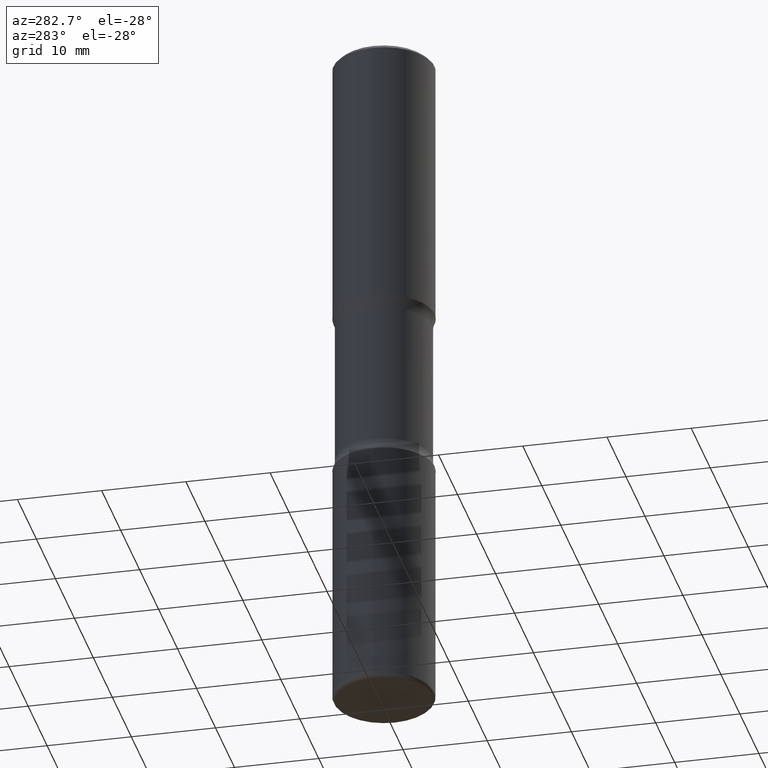
[diagram: clean part render]
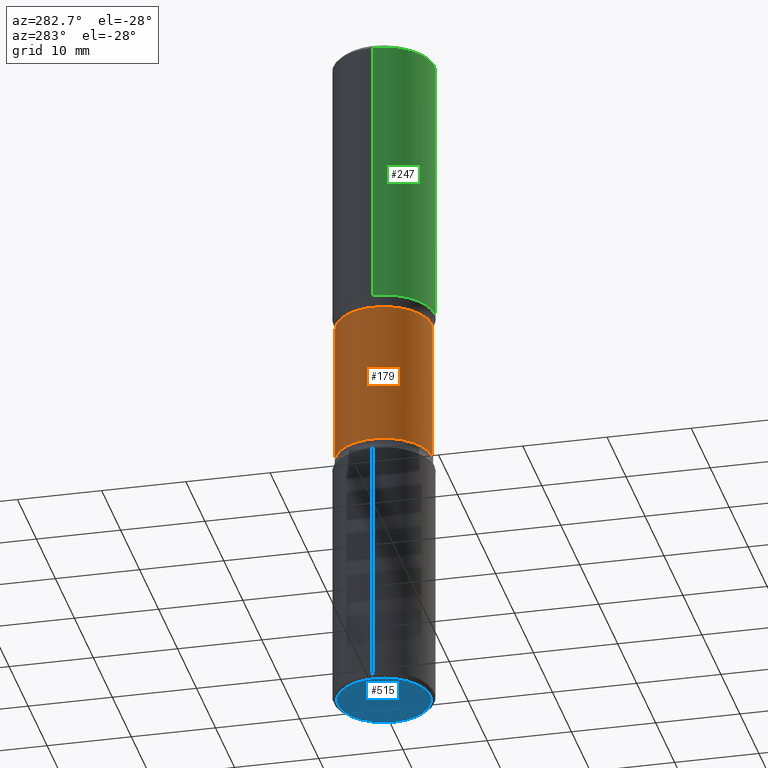
[diagram: same view with three faces highlighted in distinct colors, each labeled with its STEP entity id]
A machine part, auxiliary view with three faces highlighted in distinct colors.
Their STEP definitions:

[orange] entity #179 — the highlighted cylindrical surface (partial cylindrical patch) has radius 5.6896 mm, axis along (0, -0, -1).
#3 = VERTEX_POINT ( 'NONE', #185 ) ;
#5 = CARTESIAN_POINT ( 'NONE',  ( -1.578600589287179513E-15, -0.2240000000000071378, -2.032737582675856469 ) ) ;
#7 = AXIS2_PLACEMENT_3D ( 'NONE', #197, #281, #65 ) ;
#18 = DIRECTION ( 'NONE',  ( 6.982962677686265922E-15, 1.000000000000000000, -3.658724991514637697E-15 ) ) ;
#21 = DIRECTION ( 'NONE',  ( 2.390112245760045302E-29, -3.570755084071629599E-15, -1.000000000000000000 ) ) ;
#64 = CARTESIAN_POINT ( 'NONE',  ( -1.578600589287196671E-15, -0.2240000000000045843, -1.353062417324141231 ) ) ;
#65 = DIRECTION ( 'NONE',  ( 6.982962677686265922E-15, 1.000000000000000000, -3.658724991514639274E-15 ) ) ;
#91 = EDGE_LOOP ( 'NONE', ( #432, #477, #259, #305 ) ) ;
#112 = EDGE_CURVE ( 'NONE', #468, #3, #453, .T. ) ;
#116 = CARTESIAN_POINT ( 'NONE',  ( 1.564183639801802684E-15, 0.2239999999999884583, -3.267700000000000049 ) ) ;
#138 = VERTEX_POINT ( 'NONE', #64 ) ;
#158 = EDGE_CURVE ( 'NONE', #138, #398, #241, .T. ) ;
#174 = EDGE_CURVE ( 'NONE', #138, #468, #521, .T. ) ;
#179 = ADVANCED_FACE ( 'NONE', ( #417 ), #248, .T. ) ;
#185 = CARTESIAN_POINT ( 'NONE',  ( 1.564183639801773497E-15, 0.2239999999999929270, -2.032737582675858246 ) ) ;
#197 = CARTESIAN_POINT ( 'NONE',  ( 3.349478051907115554E-29, -4.666041908932675177E-15, -1.353062417324141897 ) ) ;
#241 = LINE ( 'NONE', #285, #481 ) ;
#243 = DIRECTION ( 'NONE',  ( 2.390112245760045022E-29, -3.570755084071629599E-15, -1.000000000000000000 ) ) ;
#245 = AXIS2_PLACEMENT_3D ( 'NONE', #536, #363, #18 ) ;
#248 = CYLINDRICAL_SURFACE ( 'NONE', #412, 0.2239999999999999492 ) ;
#259 = ORIENTED_EDGE ( 'NONE', *, *, #112, .T. ) ;
#281 = DIRECTION ( 'NONE',  ( 2.390112245760045302E-29, -3.570755084071629599E-15, -1.000000000000000000 ) ) ;
#285 = CARTESIAN_POINT ( 'NONE',  ( -1.536751551500743275E-15, -0.2240000000000114677, -3.267699999999999161 ) ) ;
#305 = ORIENTED_EDGE ( 'NONE', *, *, #495, .F. ) ;
#319 = CIRCLE ( 'NONE', #245, 0.2240000000000000324 ) ;
#327 = CARTESIAN_POINT ( 'NONE',  ( 1.564183639801756536E-15, 0.2239999999999952307, -1.353062417324142785 ) ) ;
#363 = DIRECTION ( 'NONE',  ( 2.390112245760045302E-29, -3.570755084071629599E-15, -1.000000000000000000 ) ) ;
#368 = DIRECTION ( 'NONE',  ( 6.982962677686265922E-15, 1.000000000000000000, -2.439149994343092850E-15 ) ) ;
#377 = CARTESIAN_POINT ( 'NONE',  ( 7.925676784453094467E-29, -1.150274379142710749E-14, -3.267699999999999605 ) ) ;
#398 = VERTEX_POINT ( 'NONE', #5 ) ;
#412 = AXIS2_PLACEMENT_3D ( 'NONE', #377, #21, #368 ) ;
#417 = FACE_OUTER_BOUND ( 'NONE', #91, .T. ) ;
#432 = ORIENTED_EDGE ( 'NONE', *, *, #158, .F. ) ;
#437 = VECTOR ( 'NONE', #243, 39.37007874015748143 ) ;
#453 = LINE ( 'NONE', #116, #437 ) ;
#458 = DIRECTION ( 'NONE',  ( 2.390112245760045022E-29, -3.570755084071629599E-15, -1.000000000000000000 ) ) ;
#468 = VERTEX_POINT ( 'NONE', #327 ) ;
#477 = ORIENTED_EDGE ( 'NONE', *, *, #174, .T. ) ;
#481 = VECTOR ( 'NONE', #458, 39.37007874015748143 ) ;
#495 = EDGE_CURVE ( 'NONE', #398, #3, #319, .T. ) ;
#521 = CIRCLE ( 'NONE', #7, 0.2239999999999999214 ) ;
#536 = CARTESIAN_POINT ( 'NONE',  ( 4.973977987753234840E-29, -7.092995461129538290E-15, -2.032737582675857357 ) ) ;

[blue] entity #515 — the highlighted planar face has unit normal (0, -0, -1).
#13 = FACE_OUTER_BOUND ( 'NONE', #514, .T. ) ;
#42 = ORIENTED_EDGE ( 'NONE', *, *, #539, .F. ) ;
#101 = CIRCLE ( 'NONE', #393, 0.2162000000000001421 ) ;
#103 = DIRECTION ( 'NONE',  ( 1.000000000000000000, -6.982962677686271444E-15, 0.000000000000000000 ) ) ;
#107 = CARTESIAN_POINT ( 'NONE',  ( 2.224552586656857540E-29, -1.966707813050916280E-14, -3.267699999999999605 ) ) ;
#121 = AXIS2_PLACEMENT_3D ( 'NONE', #107, #323, #325 ) ;
#149 = PLANE ( 'NONE',  #121 ) ;
#164 = CARTESIAN_POINT ( 'NONE',  ( 0.2162000000000001421, -1.291883010185351952E-14, -3.267700000000000049 ) ) ;
#176 = CIRCLE ( 'NONE', #487, 0.2162000000000001421 ) ;
#195 = CARTESIAN_POINT ( 'NONE',  ( 7.991058417971171713E-29, -1.140911357093774644E-14, -3.267700000000000049 ) ) ;
#223 = ORIENTED_EDGE ( 'NONE', *, *, #492, .F. ) ;
#230 = VERTEX_POINT ( 'NONE', #164 ) ;
#323 = DIRECTION ( 'NONE',  ( 2.438088387897960049E-29, -3.491481338843145188E-15, -1.000000000000000000 ) ) ;
#325 = DIRECTION ( 'NONE',  ( -1.000000000000000000, 6.982962677686265922E-15, -4.876176775795935793E-29 ) ) ;
#360 = CARTESIAN_POINT ( 'NONE',  ( 7.991058417971171713E-29, -1.140911357093774644E-14, -3.267700000000000049 ) ) ;
#393 = AXIS2_PLACEMENT_3D ( 'NONE', #360, #416, #456 ) ;
#407 = CARTESIAN_POINT ( 'NONE',  ( -0.2162000000000001421, -9.766951089259966901E-15, -3.267700000000000049 ) ) ;
#414 = DIRECTION ( 'NONE',  ( -2.445468806185136597E-29, 3.491481338843145583E-15, 1.000000000000000000 ) ) ;
#416 = DIRECTION ( 'NONE',  ( -2.445468806185136597E-29, 3.491481338843145583E-15, 1.000000000000000000 ) ) ;
#442 = VERTEX_POINT ( 'NONE', #407 ) ;
#456 = DIRECTION ( 'NONE',  ( 1.000000000000000000, -6.982962677686271444E-15, 0.000000000000000000 ) ) ;
#487 = AXIS2_PLACEMENT_3D ( 'NONE', #195, #414, #103 ) ;
#492 = EDGE_CURVE ( 'NONE', #230, #442, #176, .T. ) ;
#514 = EDGE_LOOP ( 'NONE', ( #223, #42 ) ) ;
#515 = ADVANCED_FACE ( 'NONE', ( #13 ), #149, .T. ) ;
#539 = EDGE_CURVE ( 'NONE', #442, #230, #101, .T. ) ;

[green] entity #247 — the highlighted cylindrical surface (partial cylindrical patch) has radius 5.9995 mm, axis along (-0, 0, 1).
#9 = EDGE_CURVE ( 'NONE', #486, #104, #244, .T. ) ;
#14 = CARTESIAN_POINT ( 'NONE',  ( 4.890937612370289799E-31, -6.982962677686315028E-17, -0.02000000000000006981 ) ) ;
#17 = CARTESIAN_POINT ( 'NONE',  ( 0.2361999999999999655, -1.690279253850498574E-15, -0.02000000000000006981 ) ) ;
#26 = CARTESIAN_POINT ( 'NONE',  ( 3.177153072995728197E-29, -4.536132555425013945E-15, -1.299199999999999688 ) ) ;
#41 = EDGE_CURVE ( 'NONE', #351, #486, #274, .T. ) ;
#57 = ORIENTED_EDGE ( 'NONE', *, *, #136, .T. ) ;
#73 = LINE ( 'NONE', #373, #330 ) ;
#75 = CARTESIAN_POINT ( 'NONE',  ( 0.000000000000000000, 0.000000000000000000, 0.000000000000000000 ) ) ;
#95 = DIRECTION ( 'NONE',  ( -2.445468806185136597E-29, 3.491481338843145583E-15, 1.000000000000000000 ) ) ;
#104 = VERTEX_POINT ( 'NONE', #17 ) ;
#114 = DIRECTION ( 'NONE',  ( 1.000000000000000000, -6.982962677686266711E-15, 4.876176775795935793E-29 ) ) ;
#136 = EDGE_CURVE ( 'NONE', #351, #212, #328, .T. ) ;
#161 = DIRECTION ( 'NONE',  ( -2.445468806185136597E-29, 3.491481338843145583E-15, 1.000000000000000000 ) ) ;
#171 = EDGE_LOOP ( 'NONE', ( #493, #57, #435, #316 ) ) ;
#205 = CARTESIAN_POINT ( 'NONE',  ( 0.2362000000000002431, -6.185508339894511259E-15, -1.299199999999999688 ) ) ;
#210 = AXIS2_PLACEMENT_3D ( 'NONE', #26, #161, #329 ) ;
#212 = VERTEX_POINT ( 'NONE', #205 ) ;
#214 = EDGE_CURVE ( 'NONE', #212, #104, #73, .T. ) ;
#215 = CARTESIAN_POINT ( 'NONE',  ( -0.2362000000000002709, -6.246791492355790717E-16, -1.299199999999999688 ) ) ;
#244 = CIRCLE ( 'NONE', #364, 0.2361999999999999655 ) ;
#247 = ADVANCED_FACE ( 'NONE', ( #501 ), #541, .T. ) ;
#250 = DIRECTION ( 'NONE',  ( -2.445468806185136597E-29, 3.491481338843145583E-15, 1.000000000000000000 ) ) ;
#263 = AXIS2_PLACEMENT_3D ( 'NONE', #75, #250, #114 ) ;
#272 = VECTOR ( 'NONE', #314, 39.37007874015748143 ) ;
#274 = LINE ( 'NONE', #361, #272 ) ;
#314 = DIRECTION ( 'NONE',  ( -2.445468806185136877E-29, 3.491481338843145188E-15, 1.000000000000000000 ) ) ;
#316 = ORIENTED_EDGE ( 'NONE', *, *, #9, .F. ) ;
#328 = CIRCLE ( 'NONE', #210, 0.2362000000000002431 ) ;
#329 = DIRECTION ( 'NONE',  ( 1.000000000000000000, -6.982962677686265922E-15, 0.000000000000000000 ) ) ;
#330 = VECTOR ( 'NONE', #538, 39.37007874015748143 ) ;
#351 = VERTEX_POINT ( 'NONE', #215 ) ;
#361 = CARTESIAN_POINT ( 'NONE',  ( -0.2362000000000001043, 1.678301941865357380E-15, -1.161852468318209317E-29 ) ) ;
#364 = AXIS2_PLACEMENT_3D ( 'NONE', #14, #95, #531 ) ;
#369 = CARTESIAN_POINT ( 'NONE',  ( -0.2361999999999999655, 1.579546157692632833E-15, -0.02000000000000006981 ) ) ;
#373 = CARTESIAN_POINT ( 'NONE',  ( 0.2362000000000001043, -1.649375784469496920E-15, 1.151752954443000508E-29 ) ) ;
#435 = ORIENTED_EDGE ( 'NONE', *, *, #214, .T. ) ;
#486 = VERTEX_POINT ( 'NONE', #369 ) ;
#493 = ORIENTED_EDGE ( 'NONE', *, *, #41, .F. ) ;
#501 = FACE_OUTER_BOUND ( 'NONE', #171, .T. ) ;
#531 = DIRECTION ( 'NONE',  ( 1.000000000000000000, -6.982962677686266711E-15, 0.000000000000000000 ) ) ;
#538 = DIRECTION ( 'NONE',  ( -2.445468806185136877E-29, 3.491481338843145188E-15, 1.000000000000000000 ) ) ;
#541 = CYLINDRICAL_SURFACE ( 'NONE', #263, 0.2362000000000001043 ) ;